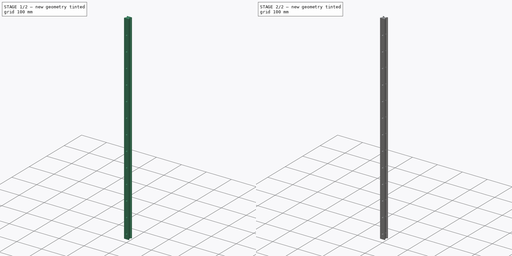
[diagram: build sequence overview — one tinted view per stage of 2, left to right]
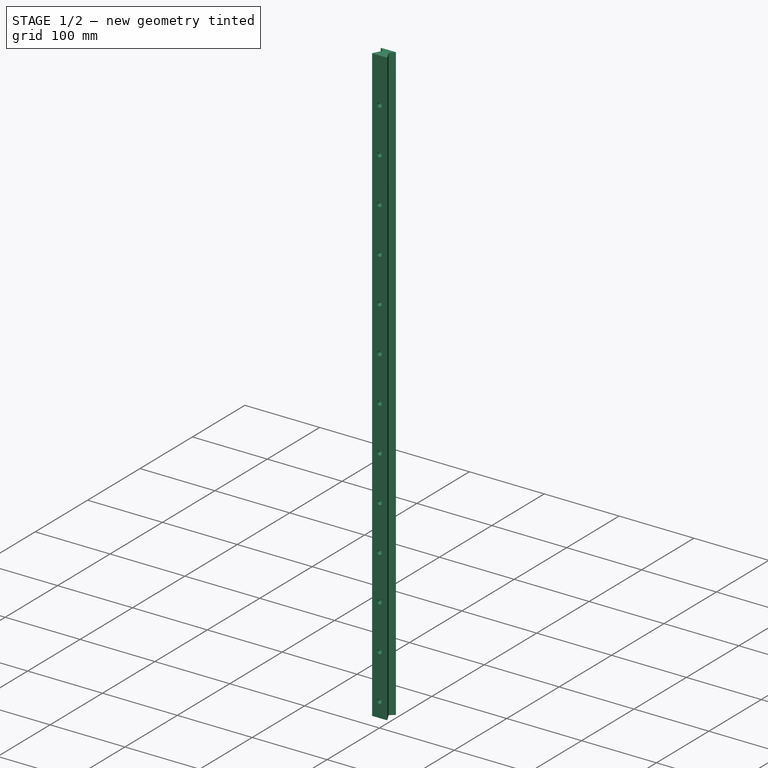
[diagram: stage 1 of 2 — iso view after this stage's code; geometry added in this stage tinted green]
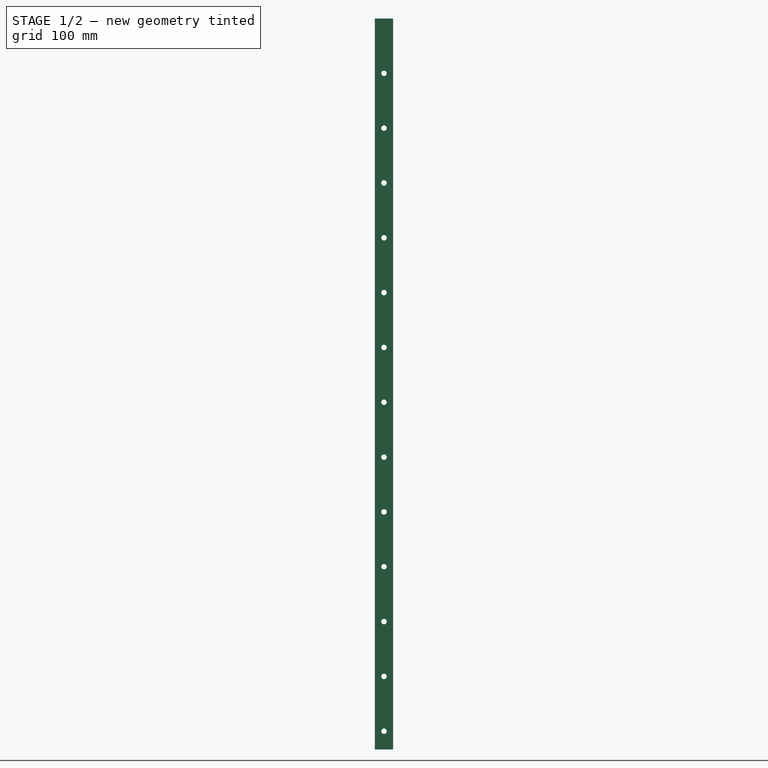
[diagram: stage 1 of 2 — front view after this stage's code; geometry added in this stage tinted green]
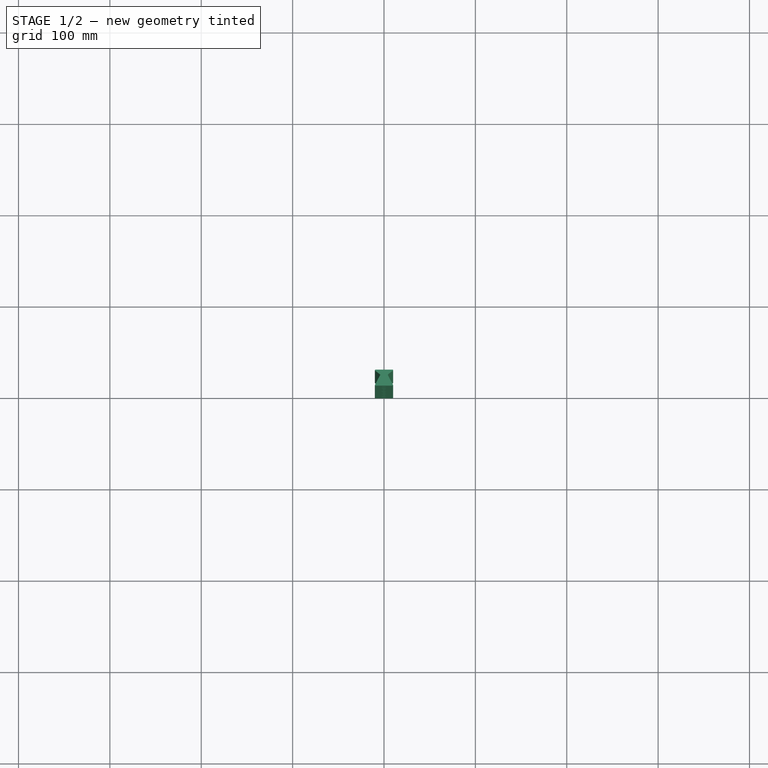
[diagram: stage 1 of 2 — top view after this stage's code; geometry added in this stage tinted green]
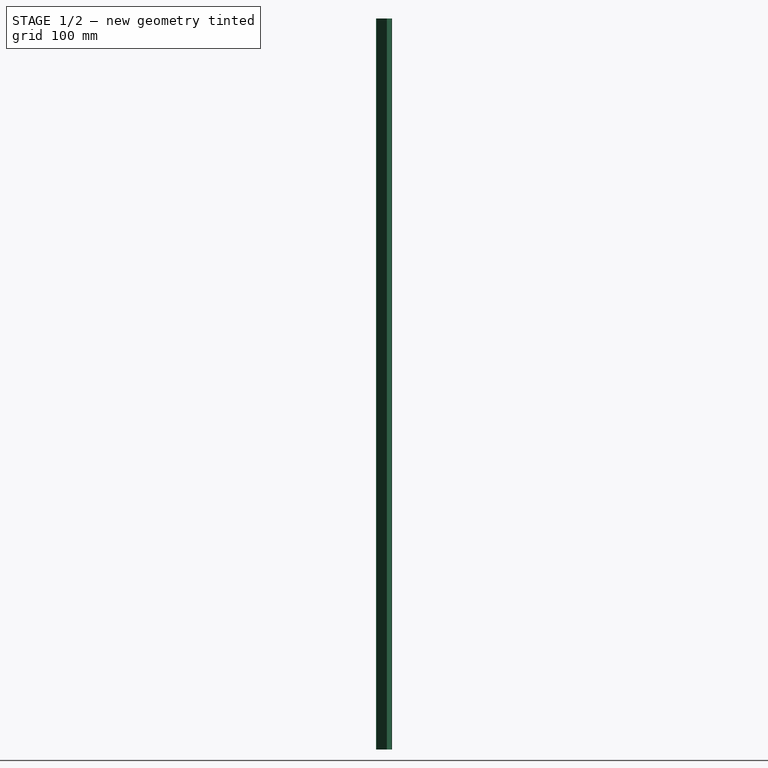
[diagram: stage 1 of 2 — right view after this stage's code; geometry added in this stage tinted green]
FCSTD DOCUMENT  (FreeCAD 0.21R33771 (Git))
Label: Guida-quadra-20-800
License: All rights reserved
LicenseURL: https://en.wikipedia.org/wiki/All_rights_reserved
objects: Sketcher::SketchObject×3, PartDesign::Pocket×2, PartDesign::Pad×1, PartDesign::CoordinateSystem×1, PartDesign::Body×1
note: 11 computed .brp shape members not serialized (recipe doc carries the construction recipe); baked Part::Feature solids carry a one-line shape summary decoded from their .brp

FEATURE [Sketcher::SketchObject] Sketch
  FullyConstrained = true
  MapMode = 5
  Support = -> [XY_Plane]
  sketch-geometry (10):
    g0: LineSegment StartX=-9.5 StartY=0 StartZ=0 EndX=9.5 EndY=0 EndZ=0
    g1: LineSegment StartX=9.5 StartY=17.409 StartZ=0 EndX=-9.5 EndY=17.409 EndZ=0
    g2: LineSegment StartX=-9.81069 StartY=16.5173 StartZ=0 EndX=-4 EndY=11.909 EndZ=0
    g3: LineSegment StartX=-4 StartY=11.909 StartZ=0 EndX=-9.94147 EndY=0.734736 EndZ=0
    g4: LineSegment StartX=9.81069 StartY=16.5173 StartZ=0 EndX=4 EndY=11.909 EndZ=0
    g5: LineSegment StartX=4 StartY=11.909 StartZ=0 EndX=9.94147 EndY=0.734736 EndZ=0
    g6: ArcOfCircle CenterX=-9.5 CenterY=0.5 CenterZ=0 NormalX=0 NormalY=0 NormalZ=1 AngleXU=0 Radius=0.5 StartAngle=2.6529 EndAngle=4.71239
    g7: ArcOfCircle CenterX=9.5 CenterY=0.5 CenterZ=0 NormalX=0 NormalY=0 NormalZ=1 AngleXU=0 Radius=0.5 StartAngle=4.71239 EndAngle=6.77188
    g8: ArcOfCircle CenterX=-9.5 CenterY=16.909 CenterZ=0 NormalX=0 NormalY=0 NormalZ=1 AngleXU=0 Radius=0.5 StartAngle=1.5708 EndAngle=4.04189
    g9: ArcOfCircle CenterX=9.5 CenterY=16.909 CenterZ=0 NormalX=0 NormalY=0 NormalZ=1 AngleXU=0 Radius=0.5 StartAngle=5.38289 EndAngle=7.85398
  constraints (23):
    c: Coincident(g3,g2)
    c: Coincident(g5,g4)
    c: Equal(g0,g1)
    c: Tangent(g3,g6) = -1.5708
    c: Tangent(g0,g6) = -1.5708
    c: Tangent(g5,g7) = 1.5708
    c: Tangent(g0,g7) = -1.5708
    c: Radius(g7) = 0.5
    c: Equal(g6,g7)
    c: Tangent(g2,g8) = -1.5708
    c: Tangent(g1,g8) = -1.5708
    c: Tangent(g1,g9) = -1.5708
    c: Tangent(g4,g9) = 1.5708
    c: Symmetric(g6,g7,g-2)
    c: Symmetric(g8,g9,g-2)
    c: Equal(g7,g9)
    c: Equal(g9,g8)
    c: Symmetric(g2,g4,g-2)
    c: DistanceX(g6,g7) = 19
    c: DistanceY(g4,g9) = 5
    c: DistanceX(g2,g-1) = 4
    c: PointOnObject(g-1,g0)
    c: Angle(g5,g0) = 1.0821
FEATURE [PartDesign::Pad] Pad
  Direction = (0,0,1)
  Length = 800
  Length2 = 10
  Profile = -> Sketch
  ReferenceAxis = -> Sketch [N_Axis]
  Type = 0
FEATURE [Sketcher::SketchObject] Sketch001
  FullyConstrained = true
  MapMode = 5
  Placement = pos=(0,17.409,0) rot=(0,0.707107,0.707107;3.14159rad)
  Support = -> [Pad]
  sketch-geometry (25):
    g0: Circle CenterX=0 CenterY=20 CenterZ=0 NormalX=0 NormalY=0 NormalZ=1 AngleXU=0 Radius=3
    g1: Circle CenterX=3.7e-15 CenterY=80 CenterZ=0 NormalX=0 NormalY=0 NormalZ=1 AngleXU=0 Radius=3
    g2: LineSegment StartX=0 StartY=20 StartZ=0 EndX=3.7e-15 EndY=80 EndZ=0
    g3: Circle CenterX=7.4e-15 CenterY=140 CenterZ=0 NormalX=0 NormalY=0 NormalZ=1 AngleXU=0 Radius=3
    g4: LineSegment StartX=3.7e-15 StartY=80 StartZ=0 EndX=7.4e-15 EndY=140 EndZ=0
    g5: Circle CenterX=1.1e-14 CenterY=200 CenterZ=0 NormalX=0 NormalY=0 NormalZ=1 AngleXU=0 Radius=3
    g6: LineSegment StartX=7.4e-15 StartY=140 StartZ=0 EndX=1.1e-14 EndY=200 EndZ=0
    g7: Circle CenterX=1.47e-14 CenterY=260 CenterZ=0 NormalX=0 NormalY=0 NormalZ=1 AngleXU=0 Radius=3
    g8: LineSegment StartX=1.1e-14 StartY=200 StartZ=0 EndX=1.47e-14 EndY=260 EndZ=0
    g9: Circle CenterX=1.84e-14 CenterY=320 CenterZ=0 NormalX=0 NormalY=0 NormalZ=1 AngleXU=0 Radius=3
    g10: LineSegment StartX=1.47e-14 StartY=260 StartZ=0 EndX=1.84e-14 EndY=320 EndZ=0
    g11: Circle CenterX=2.21e-14 CenterY=380 CenterZ=0 NormalX=0 NormalY=0 NormalZ=1 AngleXU=0 Radius=3
    g12: LineSegment StartX=1.84e-14 StartY=320 StartZ=0 EndX=2.21e-14 EndY=380 EndZ=0
    g13: Circle CenterX=2.57e-14 CenterY=440 CenterZ=0 NormalX=0 NormalY=0 NormalZ=1 AngleXU=0 Radius=3
    g14: LineSegment StartX=2.21e-14 StartY=380 StartZ=0 EndX=2.57e-14 EndY=440 EndZ=0
    g15: Circle CenterX=2.94e-14 CenterY=500 CenterZ=0 NormalX=0 NormalY=0 NormalZ=1 AngleXU=0 Radius=3
    g16: LineSegment StartX=2.57e-14 StartY=440 StartZ=0 EndX=2.94e-14 EndY=500 EndZ=0
    g17: Circle CenterX=3.31e-14 CenterY=560 CenterZ=0 NormalX=0 NormalY=0 NormalZ=1 AngleXU=0 Radius=3
    g18: LineSegment StartX=2.94e-14 StartY=500 StartZ=0 EndX=3.31e-14 EndY=560 EndZ=0
    g19: Circle CenterX=3.68e-14 CenterY=620 CenterZ=0 NormalX=0 NormalY=0 NormalZ=1 AngleXU=0 Radius=3
    g20: LineSegment StartX=3.31e-14 StartY=560 StartZ=0 EndX=3.68e-14 EndY=620 EndZ=0
    g21: Circle CenterX=4.04e-14 CenterY=680 CenterZ=0 NormalX=0 NormalY=0 NormalZ=1 AngleXU=0 Radius=3
    g22: LineSegment StartX=3.68e-14 StartY=620 StartZ=0 EndX=4.04e-14 EndY=680 EndZ=0
    g23: Circle CenterX=4.41e-14 CenterY=740 CenterZ=0 NormalX=0 NormalY=0 NormalZ=1 AngleXU=0 Radius=3
    g24: LineSegment StartX=4.04e-14 StartY=680 StartZ=0 EndX=4.41e-14 EndY=740 EndZ=0
  constraints (63):
    c: PointOnObject(g0,g-2)
    c: Radius(g0) = 3
    c: DistanceY(g-1,g0) = 20
    c: Radius(g1) = 3
    c: Coincident(g0,g2)
    c: Coincident(g1,g2)
    c: Distance(g2) = 60
    c: Angle(g2) = 1.5708
    c: Radius(g3) = 3
    c: Coincident(g1,g4)
    c: Coincident(g3,g4)
    c: Equal(g2,g4)
    c: Parallel(g4,g2)
    c: Radius(g5) = 3
    c: Coincident(g3,g6)
    c: Coincident(g5,g6)
    c: Equal(g2,g6)
    c: Parallel(g6,g2)
    c: Radius(g7) = 3
    c: Coincident(g5,g8)
    c: Coincident(g7,g8)
    c: Equal(g2,g8)
    c: Parallel(g8,g2)
    c: Radius(g9) = 3
    c: Coincident(g7,g10)
    c: Coincident(g9,g10)
    c: Equal(g2,g10)
    c: Parallel(g10,g2)
    c: Radius(g11) = 3
    c: Coincident(g9,g12)
    c: Coincident(g11,g12)
    c: Equal(g2,g12)
    c: Parallel(g12,g2)
    c: Radius(g13) = 3
    c: Coincident(g11,g14)
    c: Coincident(g13,g14)
    c: Equal(g2,g14)
    c: Parallel(g14,g2)
    c: Radius(g15) = 3
    c: Coincident(g13,g16)
    c: Coincident(g15,g16)
    c: Equal(g2,g16)
    c: Parallel(g16,g2)
    c: Radius(g17) = 3
    c: Coincident(g15,g18)
    c: Coincident(g17,g18)
    c: Equal(g2,g18)
    c: Parallel(g18,g2)
    c: Radius(g19) = 3
    c: Coincident(g17,g20)
    c: Coincident(g19,g20)
    c: Equal(g2,g20)
    c: Parallel(g20,g2)
    c: Radius(g21) = 3
    c: Coincident(g19,g22)
    c: Coincident(g21,g22)
    c: Equal(g2,g22)
    c: Parallel(g22,g2)
    c: Radius(g23) = 3
    c: Coincident(g21,g24)
    c: Coincident(g23,g24)
    c: Equal(g2,g24)
    c: Parallel(g24,g2)
FEATURE [PartDesign::Pocket] Pocket
  BaseFeature = -> Pad
  Direction = (0,-1,2e-16)
  Length = 5
  Length2 = 5
  Profile = -> Sketch001
  ReferenceAxis = -> Sketch001 [N_Axis]
  Type = 1
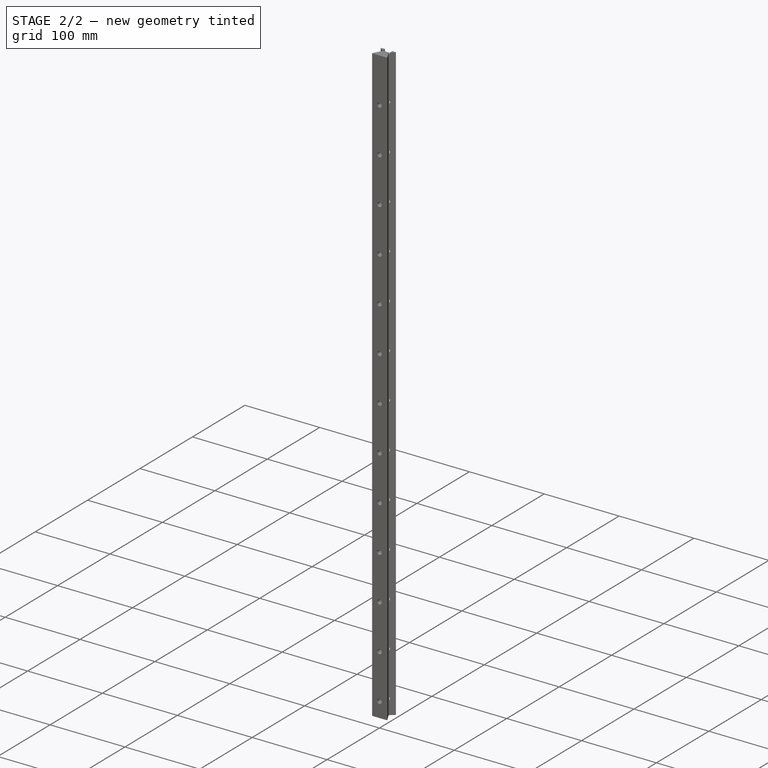
[diagram: stage 2 of 2 — iso view after this stage's code; geometry added in this stage tinted green]
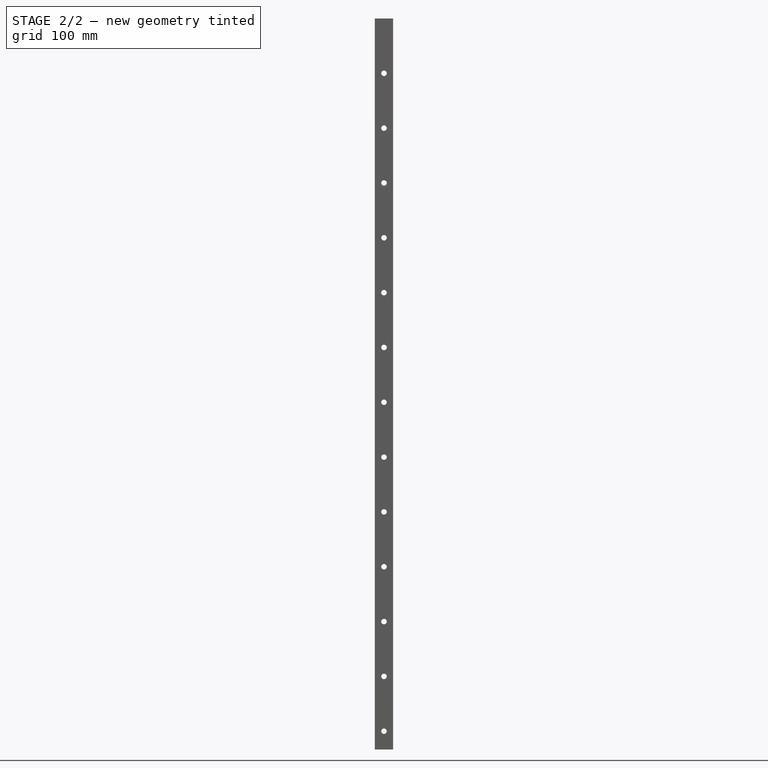
[diagram: stage 2 of 2 — front view after this stage's code; geometry added in this stage tinted green]
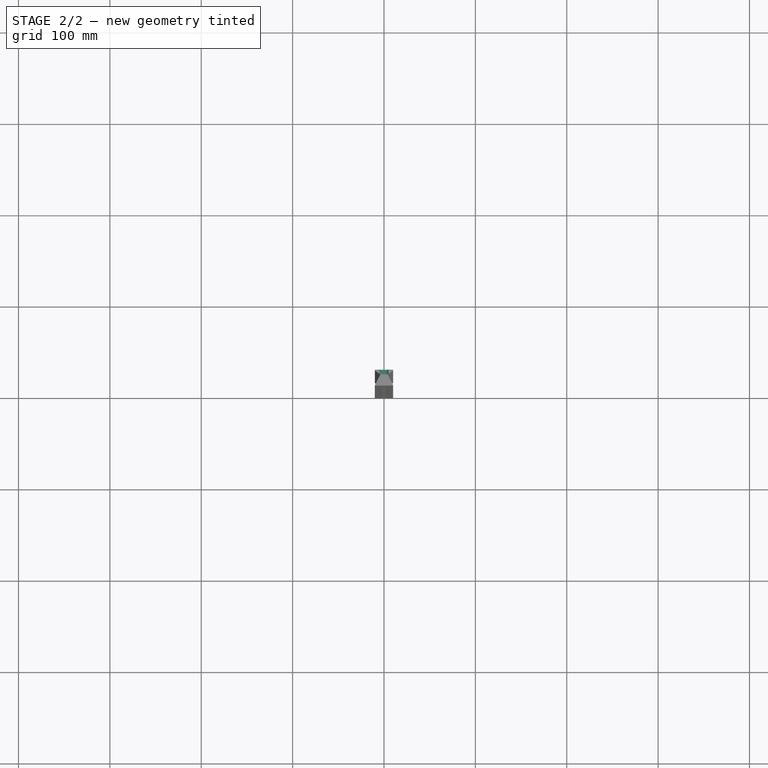
[diagram: stage 2 of 2 — top view after this stage's code; geometry added in this stage tinted green]
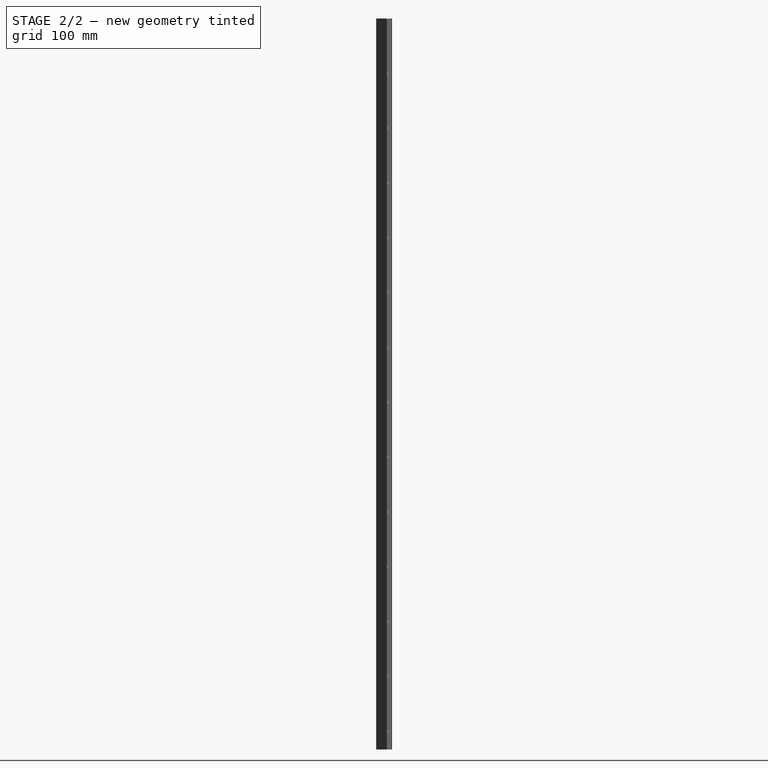
[diagram: stage 2 of 2 — right view after this stage's code; geometry added in this stage tinted green]
FEATURE [Sketcher::SketchObject] Sketch002
  ExternalGeometry = -> [Pocket]
  FullyConstrained = true
  MapMode = 5
  Placement = pos=(0,17.409,0) rot=(0,0.707107,0.707107;3.14159rad)
  Support = -> [Pocket]
  sketch-geometry (27):
    g0: Circle CenterX=0 CenterY=20 CenterZ=0 NormalX=0 NormalY=0 NormalZ=1 AngleXU=0 Radius=5
    g1: Circle CenterX=0 CenterY=80 CenterZ=0 NormalX=0 NormalY=0 NormalZ=1 AngleXU=0 Radius=5
    g2: LineSegment StartX=0 StartY=20 StartZ=0 EndX=0 EndY=80 EndZ=0
    g3: Circle CenterX=0 CenterY=140 CenterZ=0 NormalX=0 NormalY=0 NormalZ=1 AngleXU=0 Radius=5
    g4: LineSegment StartX=0 StartY=80 StartZ=0 EndX=0 EndY=140 EndZ=0
    g5: Circle CenterX=0 CenterY=200 CenterZ=0 NormalX=0 NormalY=0 NormalZ=1 AngleXU=0 Radius=5
    g6: LineSegment StartX=0 StartY=140 StartZ=0 EndX=0 EndY=200 EndZ=0
    g7: Circle CenterX=0 CenterY=260 CenterZ=0 NormalX=0 NormalY=0 NormalZ=1 AngleXU=0 Radius=5
    g8: LineSegment StartX=0 StartY=200 StartZ=0 EndX=0 EndY=260 EndZ=0
    g9: Circle CenterX=0 CenterY=320 CenterZ=0 NormalX=0 NormalY=0 NormalZ=1 AngleXU=0 Radius=5
    g10: LineSegment StartX=0 StartY=260 StartZ=0 EndX=0 EndY=320 EndZ=0
    g11: Circle CenterX=0 CenterY=380 CenterZ=0 NormalX=0 NormalY=0 NormalZ=1 AngleXU=0 Radius=5
    g12: LineSegment StartX=0 StartY=320 StartZ=0 EndX=0 EndY=380 EndZ=0
    g13: Circle CenterX=0 CenterY=440 CenterZ=0 NormalX=0 NormalY=0 NormalZ=1 AngleXU=0 Radius=5
    g14: LineSegment StartX=0 StartY=380 StartZ=0 EndX=0 EndY=440 EndZ=0
    g15: Circle CenterX=0 CenterY=500 CenterZ=0 NormalX=0 NormalY=0 NormalZ=1 AngleXU=0 Radius=5
    g16: LineSegment StartX=0 StartY=440 StartZ=0 EndX=0 EndY=500 EndZ=0
    g17: Circle CenterX=0 CenterY=560 CenterZ=0 NormalX=0 NormalY=0 NormalZ=1 AngleXU=0 Radius=5
    g18: LineSegment StartX=0 StartY=500 StartZ=0 EndX=0 EndY=560 EndZ=0
    g19: Circle CenterX=0 CenterY=620 CenterZ=0 NormalX=0 NormalY=0 NormalZ=1 AngleXU=0 Radius=5
    g20: LineSegment StartX=0 StartY=560 StartZ=0 EndX=0 EndY=620 EndZ=0
    g21: Circle CenterX=0 CenterY=680 CenterZ=0 NormalX=0 NormalY=0 NormalZ=1 AngleXU=0 Radius=5
    g22: LineSegment StartX=0 StartY=620 StartZ=0 EndX=0 EndY=680 EndZ=0
    g23: Circle CenterX=0 CenterY=740 CenterZ=0 NormalX=0 NormalY=0 NormalZ=1 AngleXU=0 Radius=5
    g24: LineSegment StartX=0 StartY=680 StartZ=0 EndX=0 EndY=740 EndZ=0
    g25: Circle CenterX=0 CenterY=800 CenterZ=0 NormalX=0 NormalY=0 NormalZ=1 AngleXU=0 Radius=5
    g26: LineSegment StartX=0 StartY=740 StartZ=0 EndX=0 EndY=800 EndZ=0
  constraints (67):
    c: Radius(g0) = 5
    c: Coincident(g0,g-4)
    c: Radius(g1) = 5
    c: Coincident(g0,g2)
    c: Coincident(g1,g2)
    c: Angle(g2) = 1.5708
    c: Radius(g3) = 5
    c: Coincident(g1,g4)
    c: Coincident(g3,g4)
    c: Equal(g2,g4)
    c: Parallel(g4,g2)
    c: Radius(g5) = 5
    c: Coincident(g3,g6)
    c: Coincident(g5,g6)
    c: Equal(g2,g6)
    c: Parallel(g6,g2)
    c: Radius(g7) = 5
    c: Coincident(g5,g8)
    c: Coincident(g7,g8)
    c: Equal(g2,g8)
    c: Parallel(g8,g2)
    c: Radius(g9) = 5
    c: Coincident(g7,g10)
    c: Coincident(g9,g10)
    c: Equal(g2,g10)
    c: Parallel(g10,g2)
    c: Radius(g11) = 5
    c: Coincident(g9,g12)
    c: Coincident(g11,g12)
    c: Equal(g2,g12)
    c: Parallel(g12,g2)
    c: Radius(g13) = 5
    c: Coincident(g11,g14)
    c: Coincident(g13,g14)
    c: Equal(g2,g14)
    c: Parallel(g14,g2)
    c: Radius(g15) = 5
    c: Coincident(g13,g16)
    c: Coincident(g15,g16)
    c: Equal(g2,g16)
    c: Parallel(g16,g2)
    c: Radius(g17) = 5
    c: Coincident(g15,g18)
    c: Coincident(g17,g18)
    c: Equal(g2,g18)
    c: Parallel(g18,g2)
    c: Radius(g19) = 5
    c: Coincident(g17,g20)
    c: Coincident(g19,g20)
    c: Equal(g2,g20)
    c: Parallel(g20,g2)
    c: Radius(g21) = 5
    c: Coincident(g19,g22)
    c: Coincident(g21,g22)
    c: Equal(g2,g22)
    c: Parallel(g22,g2)
    c: Radius(g23) = 5
    c: Coincident(g21,g24)
    c: Coincident(g23,g24)
    c: Equal(g2,g24)
    c: Parallel(g24,g2)
    c: Radius(g25) = 5
    c: Coincident(g23,g26)
    c: Coincident(g25,g26)
    c: Equal(g2,g26)
    c: Parallel(g26,g2)
    c: Coincident(g1,g-5)
FEATURE [PartDesign::Pocket] Pocket001
  BaseFeature = -> Pocket
  Direction = (0,-1,2e-16)
  Length = 5
  Length2 = 5
  Profile = -> Sketch002
  ReferenceAxis = -> Sketch002 [N_Axis]
  Type = 0
FEATURE [PartDesign::CoordinateSystem] LCS_GuidaQuadrata_20x800
  AttacherType = Attacher::AttachEngine3D
FEATURE [PartDesign::Body] Body
  Group = -> [Sketch,Pad,Sketch001,Pocket,Sketch002,Pocket001,LCS_GuidaQuadrata_20x800]
  Origin = -> Origin
  Tip = -> Pocket001
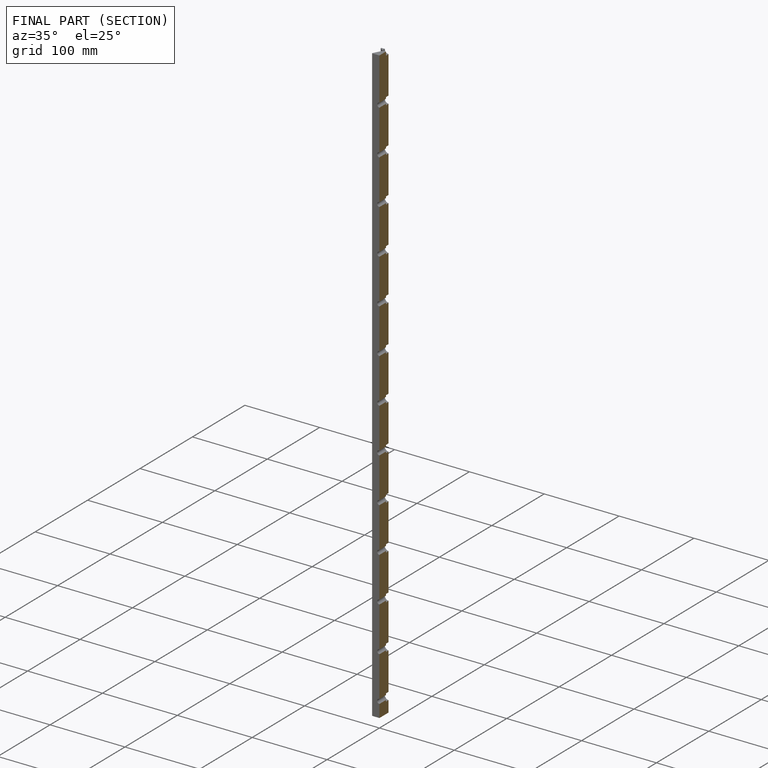
[diagram: finished part — half-section view (interior)]
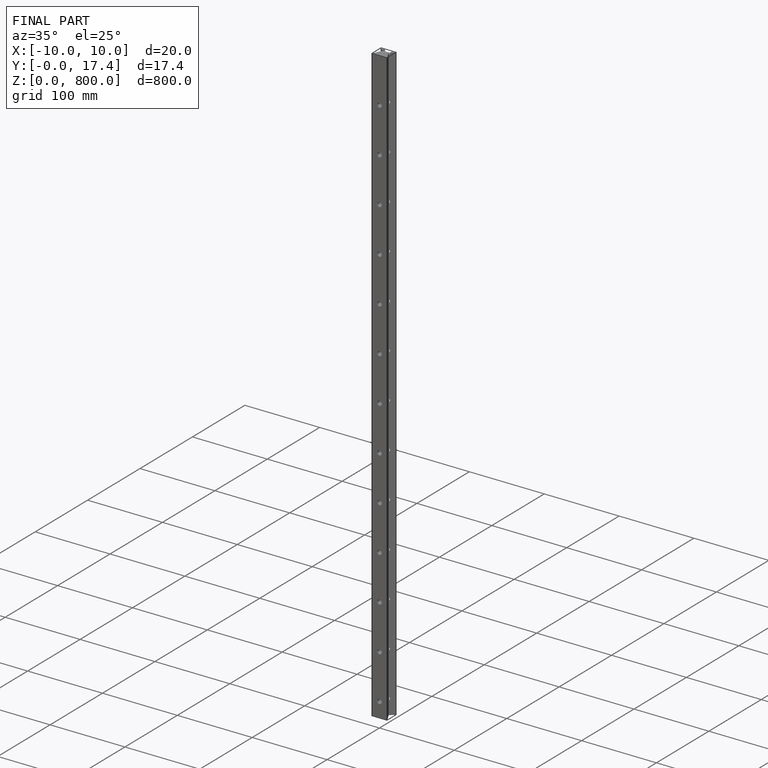
[diagram: finished part — iso view with bounding-box wireframe]
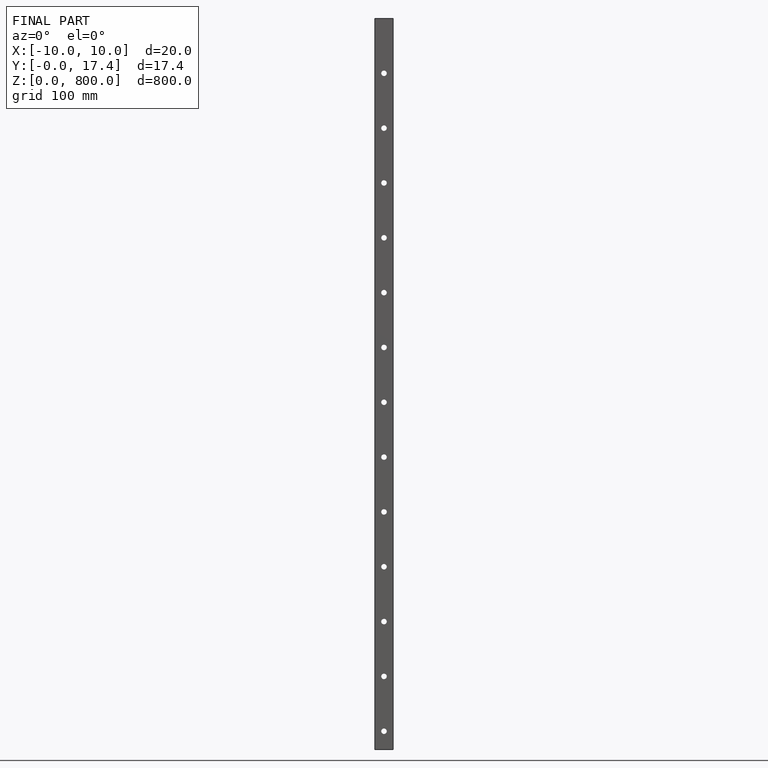
[diagram: finished part — front view with bounding-box wireframe]
